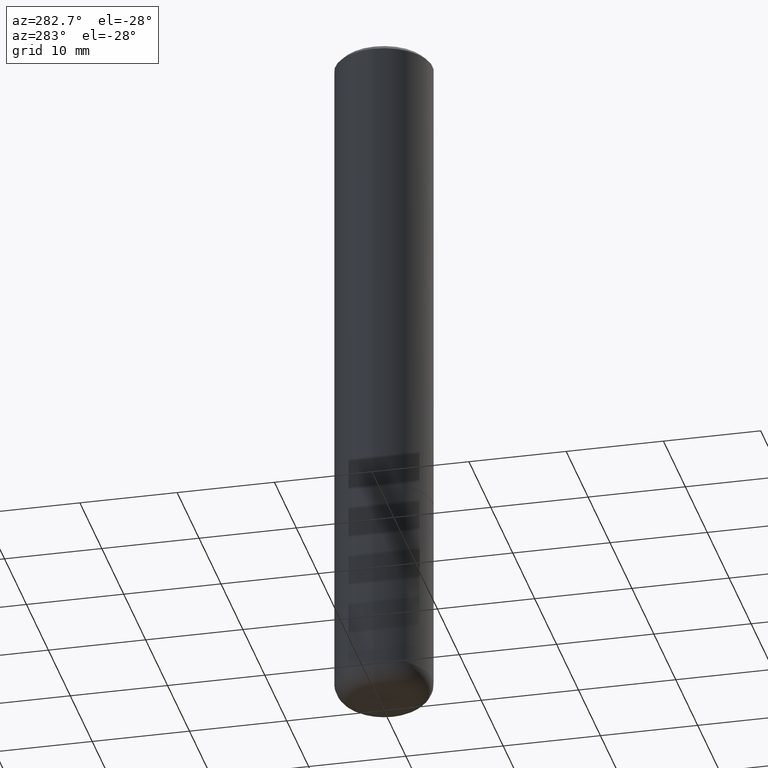
[diagram: clean part render]
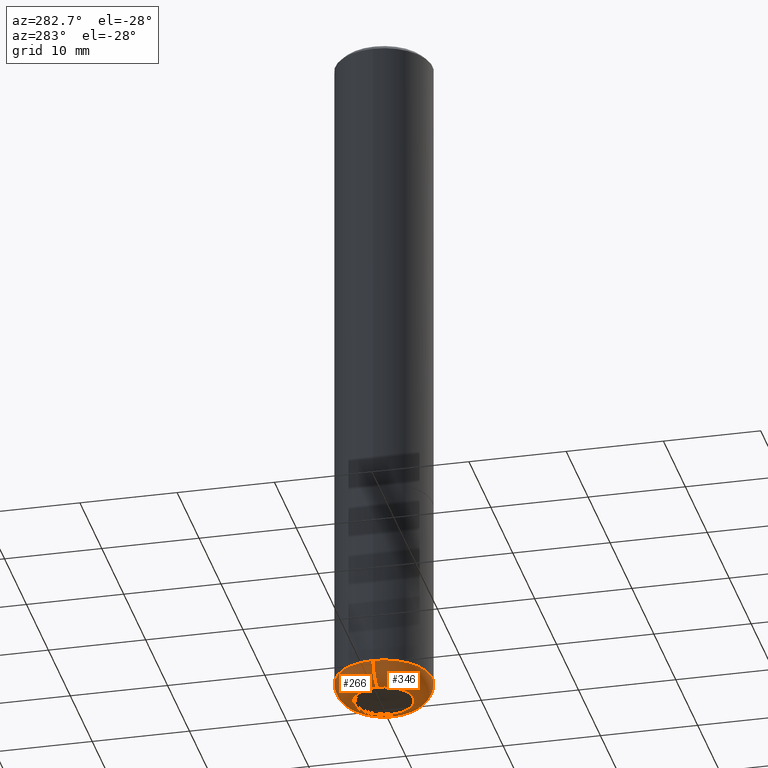
[diagram: same view with one multi-face feature highlighted, each face labeled with its STEP entity id]
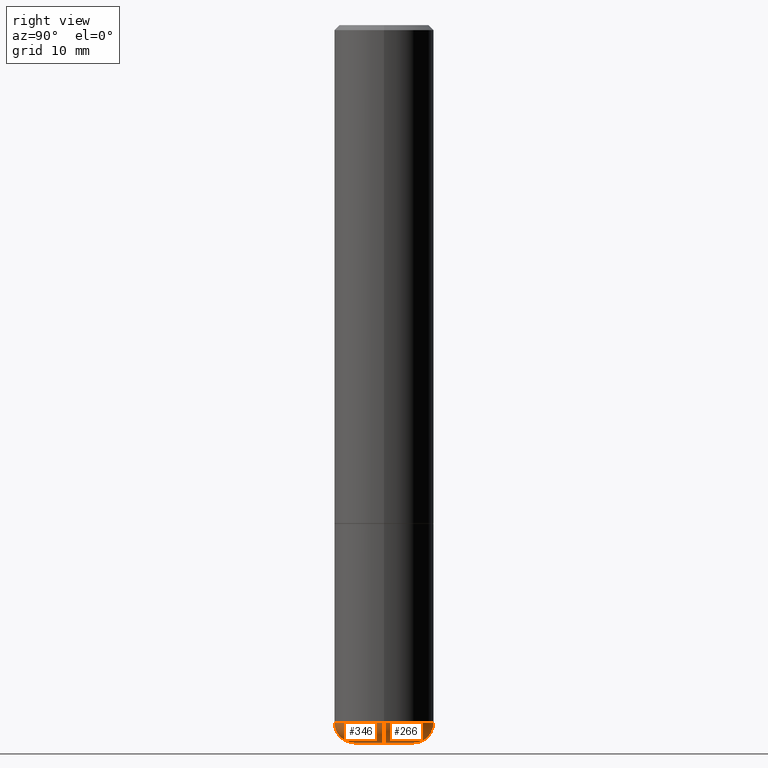
[diagram: same view with one multi-face feature highlighted, each face labeled with its STEP entity id]
A machine part, auxiliary view. The highlighted faces form ONE feature: a constant-radius fillet chain: 2 tangent blend faces with common blend radius 1.999 mm. The faces share edges in the B-rep.
A second angle (right view) of the same feature is appended — it is thin or edge-on in the first view.
Their STEP definitions:
[1] entity #346 (Torus):
#11 = FACE_OUTER_BOUND ( 'NONE', #249, .T. ) ;
#15 = DIRECTION ( 'NONE',  ( -2.445468806185136597E-29, 3.491481338843145583E-15, 1.000000000000000000 ) ) ;
#22 = AXIS2_PLACEMENT_3D ( 'NONE', #196, #333, #385 ) ;
#32 = CARTESIAN_POINT ( 'NONE',  ( -0.1968500000000001082, -8.223470046374067391E-15, -2.755900000000000016 ) ) ;
#38 = CIRCLE ( 'NONE', #359, 0.07870000000000024198 ) ;
#45 = AXIS2_PLACEMENT_3D ( 'NONE', #268, #234, #396 ) ;
#50 = EDGE_CURVE ( 'NONE', #118, #177, #38, .T. ) ;
#70 = CARTESIAN_POINT ( 'NONE',  ( -0.1181500000000000189, -8.640458403579145034E-15, -2.834600000000000453 ) ) ;
#76 = CARTESIAN_POINT ( 'NONE',  ( 6.739467482965618232E-29, -9.622173421717824390E-15, -2.755900000000000016 ) ) ;
#83 = VERTEX_POINT ( 'NONE', #70 ) ;
#99 = CARTESIAN_POINT ( 'NONE',  ( 0.1181500000000000050, -1.044721046208645774E-14, -2.755900000000000016 ) ) ;
#101 = CARTESIAN_POINT ( 'NONE',  ( 0.1968500000000001082, -1.099676962482036600E-14, -2.755900000000000016 ) ) ;
#107 = CARTESIAN_POINT ( 'NONE',  ( 6.739467482965618232E-29, -9.622173421717824390E-15, -2.755900000000000016 ) ) ;
#110 = AXIS2_PLACEMENT_3D ( 'NONE', #76, #170, #169 ) ;
#115 = ORIENTED_EDGE ( 'NONE', *, *, #312, .T. ) ;
#118 = VERTEX_POINT ( 'NONE', #189 ) ;
#123 = VERTEX_POINT ( 'NONE', #32 ) ;
#125 = ORIENTED_EDGE ( 'NONE', *, *, #336, .F. ) ;
#129 = DIRECTION ( 'NONE',  ( -6.982962677686266711E-15, -1.000000000000000000, 3.491481338843145583E-15 ) ) ;
#140 = TOROIDAL_SURFACE ( 'NONE', #162, 0.1181500000000000050, 0.07870000000000022811 ) ;
#141 = DIRECTION ( 'NONE',  ( 1.000000000000000000, -6.982962677686269077E-15, 4.883557194083114022E-29 ) ) ;
#155 = ORIENTED_EDGE ( 'NONE', *, *, #50, .T. ) ;
#162 = AXIS2_PLACEMENT_3D ( 'NONE', #107, #15, #141 ) ;
#169 = DIRECTION ( 'NONE',  ( 1.000000000000000000, -6.982962677686267499E-15, 0.000000000000000000 ) ) ;
#170 = DIRECTION ( 'NONE',  ( -2.445468806185136597E-29, 3.491481338843145583E-15, 1.000000000000000000 ) ) ;
#176 = ORIENTED_EDGE ( 'NONE', *, *, #300, .F. ) ;
#177 = VERTEX_POINT ( 'NONE', #101 ) ;
#188 = DIRECTION ( 'NONE',  ( 1.000000000000000000, -6.982962677686273810E-15, 0.000000000000000000 ) ) ;
#189 = CARTESIAN_POINT ( 'NONE',  ( 0.1181500000000000189, -1.072199004345341424E-14, -2.834600000000000453 ) ) ;
#194 = CIRCLE ( 'NONE', #22, 0.07870000000000024198 ) ;
#196 = CARTESIAN_POINT ( 'NONE',  ( -0.1181500000000000050, -8.782667179417266182E-15, -2.755900000000000016 ) ) ;
#206 = CIRCLE ( 'NONE', #110, 0.1968500000000000250 ) ;
#234 = DIRECTION ( 'NONE',  ( -2.445468806185136597E-29, 3.491481338843145583E-15, 1.000000000000000000 ) ) ;
#249 = EDGE_LOOP ( 'NONE', ( #176, #115, #155, #125 ) ) ;
#268 = CARTESIAN_POINT ( 'NONE',  ( 6.931925878012389760E-29, -9.896953003084782463E-15, -2.834600000000000453 ) ) ;
#300 = EDGE_CURVE ( 'NONE', #83, #123, #194, .T. ) ;
#312 = EDGE_CURVE ( 'NONE', #83, #118, #321, .T. ) ;
#321 = CIRCLE ( 'NONE', #45, 0.1181500000000000189 ) ;
#333 = DIRECTION ( 'NONE',  ( 7.105427357601001859E-15, 1.000000000000000000, -3.491481338843145583E-15 ) ) ;
#336 = EDGE_CURVE ( 'NONE', #123, #177, #206, .T. ) ;
#346 = ADVANCED_FACE ( 'NONE', ( #11 ), #140, .T. ) ;
#359 = AXIS2_PLACEMENT_3D ( 'NONE', #99, #129, #188 ) ;
#385 = DIRECTION ( 'NONE',  ( -1.000000000000000000, 7.105427357600995548E-15, 0.000000000000000000 ) ) ;
#396 = DIRECTION ( 'NONE',  ( 1.000000000000000000, -6.982962677686265922E-15, 0.000000000000000000 ) ) ;
[2] entity #266 (Torus):
#22 = AXIS2_PLACEMENT_3D ( 'NONE', #196, #333, #385 ) ;
#32 = CARTESIAN_POINT ( 'NONE',  ( -0.1968500000000001082, -8.223470046374067391E-15, -2.755900000000000016 ) ) ;
#38 = CIRCLE ( 'NONE', #359, 0.07870000000000024198 ) ;
#41 = FACE_OUTER_BOUND ( 'NONE', #341, .T. ) ;
#44 = CARTESIAN_POINT ( 'NONE',  ( 6.739467482965618232E-29, -9.622173421717824390E-15, -2.755900000000000016 ) ) ;
#50 = EDGE_CURVE ( 'NONE', #118, #177, #38, .T. ) ;
#58 = AXIS2_PLACEMENT_3D ( 'NONE', #332, #195, #262 ) ;
#70 = CARTESIAN_POINT ( 'NONE',  ( -0.1181500000000000189, -8.640458403579145034E-15, -2.834600000000000453 ) ) ;
#83 = VERTEX_POINT ( 'NONE', #70 ) ;
#84 = TOROIDAL_SURFACE ( 'NONE', #408, 0.1181500000000000050, 0.07870000000000022811 ) ;
#95 = DIRECTION ( 'NONE',  ( 1.000000000000000000, -6.982962677686269077E-15, 4.883557194083114022E-29 ) ) ;
#99 = CARTESIAN_POINT ( 'NONE',  ( 0.1181500000000000050, -1.044721046208645774E-14, -2.755900000000000016 ) ) ;
#101 = CARTESIAN_POINT ( 'NONE',  ( 0.1968500000000001082, -1.099676962482036600E-14, -2.755900000000000016 ) ) ;
#118 = VERTEX_POINT ( 'NONE', #189 ) ;
#123 = VERTEX_POINT ( 'NONE', #32 ) ;
#129 = DIRECTION ( 'NONE',  ( -6.982962677686266711E-15, -1.000000000000000000, 3.491481338843145583E-15 ) ) ;
#131 = ORIENTED_EDGE ( 'NONE', *, *, #235, .F. ) ;
#139 = CARTESIAN_POINT ( 'NONE',  ( 6.931925878012389760E-29, -9.896953003084782463E-15, -2.834600000000000453 ) ) ;
#177 = VERTEX_POINT ( 'NONE', #101 ) ;
#188 = DIRECTION ( 'NONE',  ( 1.000000000000000000, -6.982962677686273810E-15, 0.000000000000000000 ) ) ;
#189 = CARTESIAN_POINT ( 'NONE',  ( 0.1181500000000000189, -1.072199004345341424E-14, -2.834600000000000453 ) ) ;
#194 = CIRCLE ( 'NONE', #22, 0.07870000000000024198 ) ;
#195 = DIRECTION ( 'NONE',  ( -2.445468806185136597E-29, 3.491481338843145583E-15, 1.000000000000000000 ) ) ;
#196 = CARTESIAN_POINT ( 'NONE',  ( -0.1181500000000000050, -8.782667179417266182E-15, -2.755900000000000016 ) ) ;
#204 = ORIENTED_EDGE ( 'NONE', *, *, #383, .T. ) ;
#225 = DIRECTION ( 'NONE',  ( -2.445468806185136597E-29, 3.491481338843145583E-15, 1.000000000000000000 ) ) ;
#235 = EDGE_CURVE ( 'NONE', #177, #123, #287, .T. ) ;
#236 = DIRECTION ( 'NONE',  ( -2.445468806185136597E-29, 3.491481338843145583E-15, 1.000000000000000000 ) ) ;
#262 = DIRECTION ( 'NONE',  ( 1.000000000000000000, -6.982962677686267499E-15, 0.000000000000000000 ) ) ;
#266 = ADVANCED_FACE ( 'NONE', ( #41 ), #84, .T. ) ;
#287 = CIRCLE ( 'NONE', #58, 0.1968500000000000250 ) ;
#300 = EDGE_CURVE ( 'NONE', #83, #123, #194, .T. ) ;
#310 = ORIENTED_EDGE ( 'NONE', *, *, #300, .T. ) ;
#332 = CARTESIAN_POINT ( 'NONE',  ( 6.739467482965618232E-29, -9.622173421717824390E-15, -2.755900000000000016 ) ) ;
#333 = DIRECTION ( 'NONE',  ( 7.105427357601001859E-15, 1.000000000000000000, -3.491481338843145583E-15 ) ) ;
#341 = EDGE_LOOP ( 'NONE', ( #204, #310, #131, #374 ) ) ;
#359 = AXIS2_PLACEMENT_3D ( 'NONE', #99, #129, #188 ) ;
#371 = DIRECTION ( 'NONE',  ( 1.000000000000000000, -6.982962677686265922E-15, 0.000000000000000000 ) ) ;
#372 = CIRCLE ( 'NONE', #400, 0.1181500000000000189 ) ;
#374 = ORIENTED_EDGE ( 'NONE', *, *, #50, .F. ) ;
#383 = EDGE_CURVE ( 'NONE', #118, #83, #372, .T. ) ;
#385 = DIRECTION ( 'NONE',  ( -1.000000000000000000, 7.105427357600995548E-15, 0.000000000000000000 ) ) ;
#400 = AXIS2_PLACEMENT_3D ( 'NONE', #139, #236, #371 ) ;
#408 = AXIS2_PLACEMENT_3D ( 'NONE', #44, #225, #95 ) ;